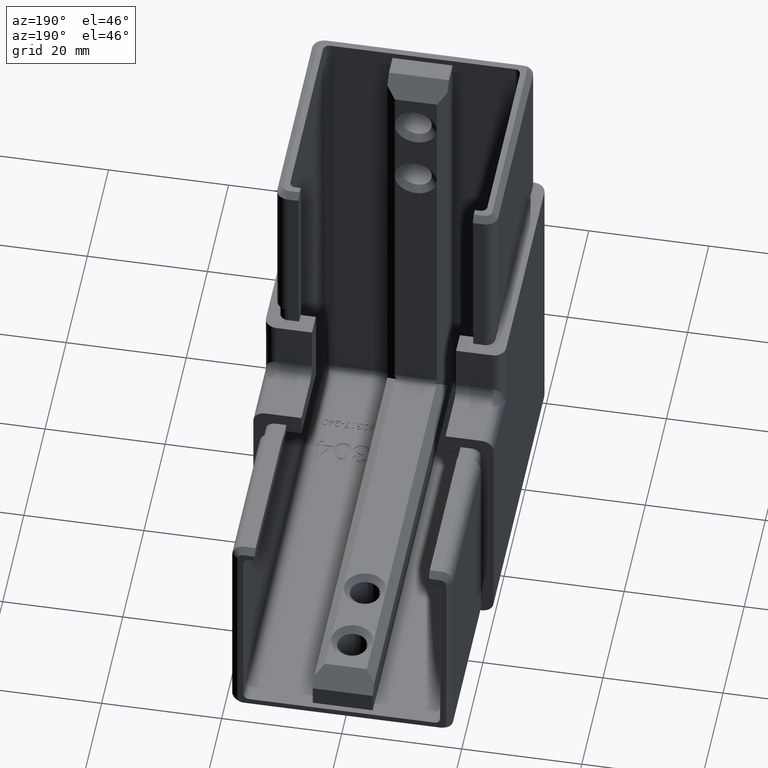
[diagram: clean part render]
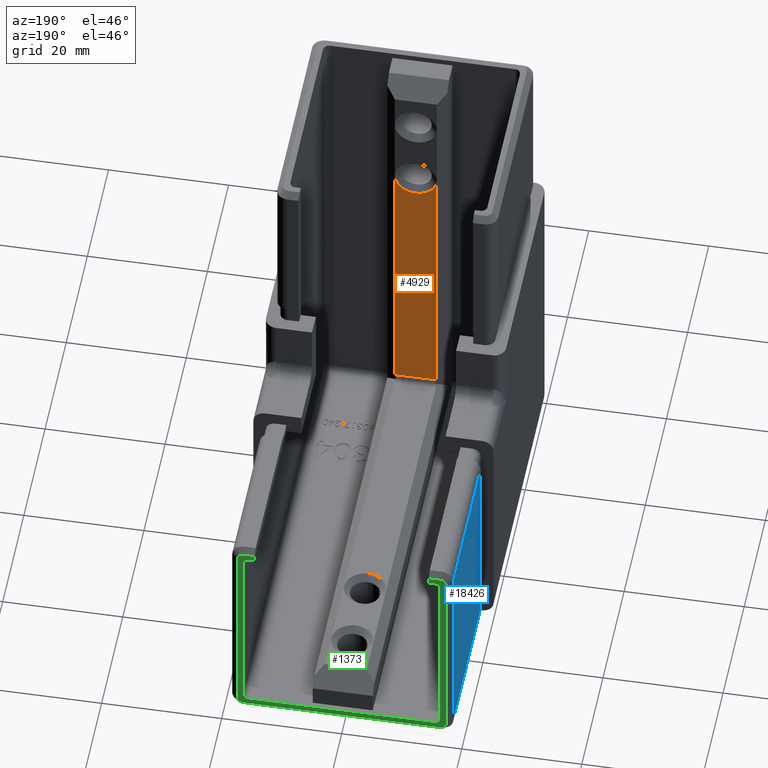
[diagram: same view with three faces highlighted in distinct colors, each labeled with its STEP entity id]
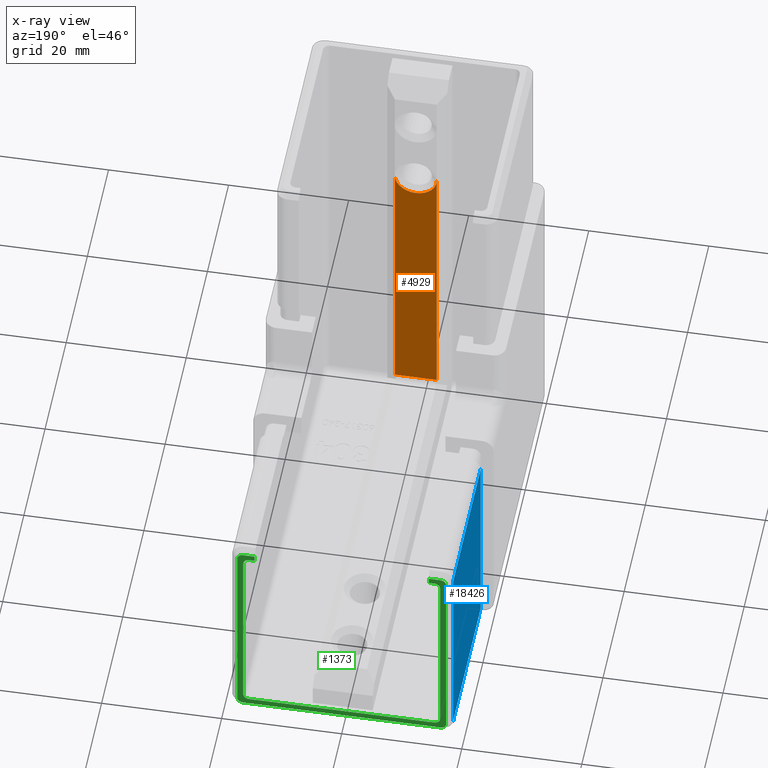
[diagram: x-ray of the same camera — body ghosted, the three highlighted faces saturated]
A machine part, auxiliary view with three faces highlighted in distinct colors.
The next image is the same camera in x-ray (body ghosted, the three faces saturated) — at least one of them is partly hidden behind the body in this view.
Their STEP definitions:

[orange] entity #4929 — the highlighted planar face has unit normal (-0, 1, 0).
#222 = AXIS2_PLACEMENT_3D ( 'NONE', #16158, #1973, #14361 ) ;
#526 = DIRECTION ( 'NONE',  ( 0.000000000000000000, -1.224646799147353207E-16, 1.000000000000000000 ) ) ;
#532 = LINE ( 'NONE', #15105, #19165 ) ;
#667 = CARTESIAN_POINT ( 'NONE',  ( -3.500000000000000444, 9.999999999999991118, 0.000000000000000000 ) ) ;
#1093 = VERTEX_POINT ( 'NONE', #14992 ) ;
#1263 = CIRCLE ( 'NONE', #222, 3.499999999999972911 ) ;
#1293 = ORIENTED_EDGE ( 'NONE', *, *, #20077, .T. ) ;
#1973 = DIRECTION ( 'NONE',  ( 4.956352788505162282E-16, -1.000000000000000000, -1.224646799147353207E-16 ) ) ;
#2079 = CARTESIAN_POINT ( 'NONE',  ( 3.500000000000000444, 9.999999999999987566, 58.00000000000000000 ) ) ;
#2110 = LINE ( 'NONE', #667, #12157 ) ;
#3156 = DIRECTION ( 'NONE',  ( 4.956352788505162282E-16, -1.000000000000000000, -1.224646799147353207E-16 ) ) ;
#3917 = CARTESIAN_POINT ( 'NONE',  ( 3.500000000000000444, 9.999999999999994671, 0.000000000000000000 ) ) ;
#4929 = ADVANCED_FACE ( 'NONE', ( #10218 ), #11789, .T. ) ;
#5102 = AXIS2_PLACEMENT_3D ( 'NONE', #17245, #3156, #14082 ) ;
#5641 = VECTOR ( 'NONE', #13127, 1000.000000000000000 ) ;
#7911 = EDGE_CURVE ( 'NONE', #18215, #1093, #532, .T. ) ;
#8099 = ORIENTED_EDGE ( 'NONE', *, *, #8465, .T. ) ;
#8465 = EDGE_CURVE ( 'NONE', #17392, #12765, #1263, .T. ) ;
#8512 = CARTESIAN_POINT ( 'NONE',  ( -3.500000000000000444, 9.999999999999991118, 0.000000000000000000 ) ) ;
#8837 = EDGE_CURVE ( 'NONE', #15285, #17392, #19876, .T. ) ;
#10218 = FACE_OUTER_BOUND ( 'NONE', #19209, .T. ) ;
#11718 = DIRECTION ( 'NONE',  ( -1.000000000000000000, -4.956352788505162282E-16, 0.000000000000000000 ) ) ;
#11789 = PLANE ( 'NONE',  #16563 ) ;
#12157 = VECTOR ( 'NONE', #526, 1000.000000000000000 ) ;
#12461 = CARTESIAN_POINT ( 'NONE',  ( -3.500000000000000444, 9.999999999999984013, 58.00000000000000000 ) ) ;
#12624 = ORIENTED_EDGE ( 'NONE', *, *, #7911, .T. ) ;
#12765 = VERTEX_POINT ( 'NONE', #2079 ) ;
#13127 = DIRECTION ( 'NONE',  ( 0.000000000000000000, -1.224646799147353207E-16, 1.000000000000000000 ) ) ;
#13333 = ORIENTED_EDGE ( 'NONE', *, *, #17070, .F. ) ;
#14082 = DIRECTION ( 'NONE',  ( -1.000000000000000000, -4.956352788505201725E-16, 0.000000000000000000 ) ) ;
#14224 = CARTESIAN_POINT ( 'NONE',  ( 3.500000000000000444, 9.999999999999992895, 10.99999999999999467 ) ) ;
#14361 = DIRECTION ( 'NONE',  ( -1.000000000000000000, -4.956352788505201725E-16, 0.000000000000000000 ) ) ;
#14419 = LINE ( 'NONE', #3917, #5641 ) ;
#14992 = CARTESIAN_POINT ( 'NONE',  ( -3.500000000000000444, 9.999999999999989342, 10.99999999999999112 ) ) ;
#15105 = CARTESIAN_POINT ( 'NONE',  ( -3.500000000000000888, 9.999999999999989342, 10.99999999999999112 ) ) ;
#15285 = VERTEX_POINT ( 'NONE', #12461 ) ;
#16158 = CARTESIAN_POINT ( 'NONE',  ( -2.750171364353452391E-16, 9.999999999999985789, 58.00000000000000000 ) ) ;
#16337 = CARTESIAN_POINT ( 'NONE',  ( 1.536092432662252896E-16, 9.999999999999985789, 54.50000000000002842 ) ) ;
#16446 = DIRECTION ( 'NONE',  ( -4.956352788505162282E-16, 1.000000000000000000, 1.224646799147353207E-16 ) ) ;
#16563 = AXIS2_PLACEMENT_3D ( 'NONE', #8512, #16446, #11718 ) ;
#17004 = ORIENTED_EDGE ( 'NONE', *, *, #8837, .T. ) ;
#17070 = EDGE_CURVE ( 'NONE', #18215, #12765, #14419, .T. ) ;
#17245 = CARTESIAN_POINT ( 'NONE',  ( -2.750171364353452391E-16, 9.999999999999985789, 58.00000000000000000 ) ) ;
#17392 = VERTEX_POINT ( 'NONE', #16337 ) ;
#18182 = DIRECTION ( 'NONE',  ( -1.000000000000000000, -4.956352788505161296E-16, -4.956352788505162282E-16 ) ) ;
#18215 = VERTEX_POINT ( 'NONE', #14224 ) ;
#19165 = VECTOR ( 'NONE', #18182, 1000.000000000000000 ) ;
#19209 = EDGE_LOOP ( 'NONE', ( #1293, #17004, #8099, #13333, #12624 ) ) ;
#19876 = CIRCLE ( 'NONE', #5102, 3.499999999999972911 ) ;
#20077 = EDGE_CURVE ( 'NONE', #1093, #15285, #2110, .T. ) ;

[blue] entity #18426 — the highlighted planar face has unit normal (-1, 0, 0).
#106 = VECTOR ( 'NONE', #17333, 1000.000000000000000 ) ;
#869 = PLANE ( 'NONE',  #6266 ) ;
#1368 = CARTESIAN_POINT ( 'NONE',  ( -18.39999999999999858, 80.00000000000000000, 3.599999999999961897 ) ) ;
#1772 = CARTESIAN_POINT ( 'NONE',  ( -18.40000000000000213, 80.00000000000001421, 36.39999999999995595 ) ) ;
#1921 = VERTEX_POINT ( 'NONE', #15728 ) ;
#3175 = CARTESIAN_POINT ( 'NONE',  ( -18.40000000000000213, 53.00000000000000711, 36.39999999999997016 ) ) ;
#3556 = LINE ( 'NONE', #1772, #106 ) ;
#4034 = CARTESIAN_POINT ( 'NONE',  ( -18.39999999999999858, 79.00000000000002842, 3.599999999999962341 ) ) ;
#4039 = ORIENTED_EDGE ( 'NONE', *, *, #16019, .T. ) ;
#4606 = FACE_OUTER_BOUND ( 'NONE', #7385, .T. ) ;
#4670 = DIRECTION ( 'NONE',  ( -0.000000000000000000, -1.000000000000000000, 4.440892098500625176E-16 ) ) ;
#5497 = DIRECTION ( 'NONE',  ( 0.000000000000000000, 0.000000000000000000, 1.000000000000000000 ) ) ;
#6266 = AXIS2_PLACEMENT_3D ( 'NONE', #7121, #19755, #5497 ) ;
#6310 = VERTEX_POINT ( 'NONE', #3175 ) ;
#6398 = EDGE_CURVE ( 'NONE', #15460, #6310, #3556, .T. ) ;
#6493 = CARTESIAN_POINT ( 'NONE',  ( -18.39999999999999858, 53.00000000000000000, 3.599999999999967670 ) ) ;
#6694 = DIRECTION ( 'NONE',  ( 0.000000000000000000, 2.220446049250312588E-16, 1.000000000000000000 ) ) ;
#6941 = ORIENTED_EDGE ( 'NONE', *, *, #10433, .T. ) ;
#7121 = CARTESIAN_POINT ( 'NONE',  ( -18.39999999999999858, 80.00000000000000000, 3.599999999999961897 ) ) ;
#7336 = VECTOR ( 'NONE', #4670, 1000.000000000000000 ) ;
#7385 = EDGE_LOOP ( 'NONE', ( #17110, #6941, #8119, #4039 ) ) ;
#7887 = VECTOR ( 'NONE', #6694, 1000.000000000000000 ) ;
#8119 = ORIENTED_EDGE ( 'NONE', *, *, #6398, .F. ) ;
#8127 = LINE ( 'NONE', #6493, #7887 ) ;
#9750 = CARTESIAN_POINT ( 'NONE',  ( -18.40000000000000213, 79.00000000000004263, 36.39999999999995595 ) ) ;
#10433 = EDGE_CURVE ( 'NONE', #1921, #6310, #8127, .T. ) ;
#10559 = VECTOR ( 'NONE', #11966, 1000.000000000000000 ) ;
#11966 = DIRECTION ( 'NONE',  ( 0.000000000000000000, -4.440892098500625176E-16, -1.000000000000000000 ) ) ;
#12100 = VERTEX_POINT ( 'NONE', #16658 ) ;
#15460 = VERTEX_POINT ( 'NONE', #9750 ) ;
#15728 = CARTESIAN_POINT ( 'NONE',  ( -18.39999999999999858, 53.00000000000000000, 3.599999999999977440 ) ) ;
#16019 = EDGE_CURVE ( 'NONE', #15460, #12100, #16916, .T. ) ;
#16658 = CARTESIAN_POINT ( 'NONE',  ( -18.39999999999999858, 79.00000000000002842, 3.599999999999962341 ) ) ;
#16916 = LINE ( 'NONE', #4034, #10559 ) ;
#17110 = ORIENTED_EDGE ( 'NONE', *, *, #17667, .T. ) ;
#17333 = DIRECTION ( 'NONE',  ( -0.000000000000000000, -1.000000000000000000, 4.440892098500625176E-16 ) ) ;
#17667 = EDGE_CURVE ( 'NONE', #12100, #1921, #19544, .T. ) ;
#18426 = ADVANCED_FACE ( 'NONE', ( #4606 ), #869, .T. ) ;
#19544 = LINE ( 'NONE', #1368, #7336 ) ;
#19755 = DIRECTION ( 'NONE',  ( -1.000000000000000000, 0.000000000000000000, 0.000000000000000000 ) ) ;

[green] entity #1373 — the highlighted planar face has unit normal (0, 1, -0).
#27 = DIRECTION ( 'NONE',  ( 0.000000000000000000, 1.000000000000000000, -4.440892098500625176E-16 ) ) ;
#234 = EDGE_CURVE ( 'NONE', #17022, #6151, #6107, .T. ) ;
#264 = CARTESIAN_POINT ( 'NONE',  ( 16.40000000000000568, 80.00000000000000000, 4.599999999999955236 ) ) ;
#291 = LINE ( 'NONE', #13755, #8148 ) ;
#548 = EDGE_CURVE ( 'NONE', #3428, #16782, #3662, .T. ) ;
#787 = ORIENTED_EDGE ( 'NONE', *, *, #1391, .F. ) ;
#859 = LINE ( 'NONE', #5792, #18718 ) ;
#1037 = CARTESIAN_POINT ( 'NONE',  ( 16.39999999999999147, 80.00000000000000000, 2.599999999999923705 ) ) ;
#1373 = ADVANCED_FACE ( 'NONE', ( #17084 ), #9236, .T. ) ;
#1391 = EDGE_CURVE ( 'NONE', #17186, #19114, #13654, .T. ) ;
#1600 = DIRECTION ( 'NONE',  ( 1.000000000000000000, 0.000000000000000000, 0.000000000000000000 ) ) ;
#1647 = AXIS2_PLACEMENT_3D ( 'NONE', #1673, #17297, #7929 ) ;
#1673 = CARTESIAN_POINT ( 'NONE',  ( -15.40000000000000036, 80.00000000000000000, 4.599999999999955236 ) ) ;
#1767 = DIRECTION ( 'NONE',  ( 1.000000000000000000, 0.000000000000000000, 0.000000000000000000 ) ) ;
#1820 = EDGE_CURVE ( 'NONE', #19901, #5185, #19750, .T. ) ;
#2023 = CARTESIAN_POINT ( 'NONE',  ( -15.40000000000000036, 80.00000000000001421, 36.39999999999997016 ) ) ;
#2131 = VECTOR ( 'NONE', #5957, 1000.000000000000000 ) ;
#2174 = AXIS2_PLACEMENT_3D ( 'NONE', #19254, #17622, #11671 ) ;
#2231 = VERTEX_POINT ( 'NONE', #3469 ) ;
#2451 = VERTEX_POINT ( 'NONE', #12851 ) ;
#2585 = ORIENTED_EDGE ( 'NONE', *, *, #9981, .F. ) ;
#2617 = DIRECTION ( 'NONE',  ( 1.000000000000000000, 0.000000000000000000, 0.000000000000000000 ) ) ;
#2776 = ORIENTED_EDGE ( 'NONE', *, *, #15008, .T. ) ;
#2928 = ORIENTED_EDGE ( 'NONE', *, *, #7196, .T. ) ;
#3129 = ORIENTED_EDGE ( 'NONE', *, *, #19818, .F. ) ;
#3205 = LINE ( 'NONE', #18652, #5168 ) ;
#3276 = VERTEX_POINT ( 'NONE', #12810 ) ;
#3428 = VERTEX_POINT ( 'NONE', #5780 ) ;
#3469 = CARTESIAN_POINT ( 'NONE',  ( -17.40000000000002700, 80.00000000000001421, 36.39999999999995595 ) ) ;
#3605 = LINE ( 'NONE', #4814, #18048 ) ;
#3662 = LINE ( 'NONE', #17556, #19787 ) ;
#3787 = CARTESIAN_POINT ( 'NONE',  ( 14.49999999999999822, 80.00000000000001421, 38.39999999999995595 ) ) ;
#3853 = DIRECTION ( 'NONE',  ( 8.673617379884058152E-16, -2.220446049250312588E-16, -1.000000000000000000 ) ) ;
#3922 = VERTEX_POINT ( 'NONE', #7128 ) ;
#4003 = LINE ( 'NONE', #3787, #6185 ) ;
#4029 = ORIENTED_EDGE ( 'NONE', *, *, #9770, .F. ) ;
#4183 = AXIS2_PLACEMENT_3D ( 'NONE', #11565, #16091, #5142 ) ;
#4203 = VERTEX_POINT ( 'NONE', #6631 ) ;
#4504 = ORIENTED_EDGE ( 'NONE', *, *, #18768, .F. ) ;
#4529 = DIRECTION ( 'NONE',  ( 1.000000000000000000, 0.000000000000000000, 0.000000000000000000 ) ) ;
#4748 = DIRECTION ( 'NONE',  ( -1.000000000000000000, -7.633258925925022926E-32, -1.718857102720922782E-16 ) ) ;
#4814 = CARTESIAN_POINT ( 'NONE',  ( 15.40000000000000036, 80.00000000000000000, 3.599999999999954348 ) ) ;
#4816 = AXIS2_PLACEMENT_3D ( 'NONE', #12634, #27, #1600 ) ;
#5142 = DIRECTION ( 'NONE',  ( 0.000000000000000000, 0.000000000000000000, 1.000000000000000000 ) ) ;
#5168 = VECTOR ( 'NONE', #10819, 1000.000000000000000 ) ;
#5185 = VERTEX_POINT ( 'NONE', #6299 ) ;
#5188 = DIRECTION ( 'NONE',  ( 1.000000000000000000, 0.000000000000000000, 0.000000000000000000 ) ) ;
#5312 = LINE ( 'NONE', #13564, #7508 ) ;
#5379 = DIRECTION ( 'NONE',  ( 2.115516434118058695E-16, -4.440892098500625176E-16, -1.000000000000000000 ) ) ;
#5546 = ORIENTED_EDGE ( 'NONE', *, *, #18347, .T. ) ;
#5562 = CARTESIAN_POINT ( 'NONE',  ( -16.40000000000000568, 80.00000000000000000, 4.599999999999955236 ) ) ;
#5780 = CARTESIAN_POINT ( 'NONE',  ( 14.49999999999999822, 80.00000000000001421, 37.39999999999997726 ) ) ;
#5786 = CARTESIAN_POINT ( 'NONE',  ( -16.40000000000000568, 80.00000000000001421, 36.39999999999995595 ) ) ;
#5792 = CARTESIAN_POINT ( 'NONE',  ( -16.40000000000000924, 80.00000000000000000, 4.599999999999955236 ) ) ;
#5957 = DIRECTION ( 'NONE',  ( 2.252887631138709814E-16, -2.220446049250312588E-16, -1.000000000000000000 ) ) ;
#6034 = CARTESIAN_POINT ( 'NONE',  ( 15.40000000000000036, 80.00000000000001421, 35.39999999999996305 ) ) ;
#6107 = CIRCLE ( 'NONE', #2174, 1.000000000000029532 ) ;
#6151 = VERTEX_POINT ( 'NONE', #1037 ) ;
#6185 = VECTOR ( 'NONE', #3853, 1000.000000000000000 ) ;
#6208 = EDGE_CURVE ( 'NONE', #8748, #17186, #859, .T. ) ;
#6277 = EDGE_LOOP ( 'NONE', ( #9599, #18238, #19510, #3129, #787, #15948, #4504, #14261, #10871, #14781, #11691, #4029, #2585, #19661, #5546, #2776, #6840, #9888, #13789, #2928 ) ) ;
#6299 = CARTESIAN_POINT ( 'NONE',  ( 15.40000000000000036, 80.00000000000000000, 3.599999999999952127 ) ) ;
#6483 = DIRECTION ( 'NONE',  ( 1.000000000000000000, 0.000000000000000000, 0.000000000000000000 ) ) ;
#6551 = CARTESIAN_POINT ( 'NONE',  ( -15.40000000000000036, 80.00000000000000000, 4.599999999999955236 ) ) ;
#6631 = CARTESIAN_POINT ( 'NONE',  ( -16.40000000000000568, 80.00000000000001421, 37.39999999999998437 ) ) ;
#6840 = ORIENTED_EDGE ( 'NONE', *, *, #234, .T. ) ;
#6918 = AXIS2_PLACEMENT_3D ( 'NONE', #5786, #15204, #13757 ) ;
#6961 = LINE ( 'NONE', #9474, #18234 ) ;
#7048 = DIRECTION ( 'NONE',  ( 1.000000000000000000, 0.000000000000000000, 0.000000000000000000 ) ) ;
#7128 = CARTESIAN_POINT ( 'NONE',  ( -15.40000000000000036, 80.00000000000000000, 3.599999999999950351 ) ) ;
#7196 = EDGE_CURVE ( 'NONE', #17566, #2231, #6961, .T. ) ;
#7508 = VECTOR ( 'NONE', #2617, 1000.000000000000000 ) ;
#7764 = CARTESIAN_POINT ( 'NONE',  ( -17.40000000000003055, 80.00000000000000000, 3.599999999999961897 ) ) ;
#7853 = CARTESIAN_POINT ( 'NONE',  ( 15.40000000000000036, 80.00000000000001421, 36.39999999999996305 ) ) ;
#7929 = DIRECTION ( 'NONE',  ( 1.000000000000000000, 0.000000000000000000, 0.000000000000000000 ) ) ;
#8026 = CARTESIAN_POINT ( 'NONE',  ( -16.40000000000000213, 80.00000000000000000, 3.599999999999947242 ) ) ;
#8148 = VECTOR ( 'NONE', #4529, 1000.000000000000000 ) ;
#8156 = DIRECTION ( 'NONE',  ( 0.000000000000000000, 0.000000000000000000, 1.000000000000000000 ) ) ;
#8420 = CARTESIAN_POINT ( 'NONE',  ( 16.39999999999999858, 80.00000000000001421, 35.39999999999996305 ) ) ;
#8652 = VECTOR ( 'NONE', #1767, 1000.000000000000000 ) ;
#8748 = VERTEX_POINT ( 'NONE', #5562 ) ;
#8769 = AXIS2_PLACEMENT_3D ( 'NONE', #8771, #16569, #7048 ) ;
#8771 = CARTESIAN_POINT ( 'NONE',  ( 15.40000000000000036, 80.00000000000000000, 4.599999999999955236 ) ) ;
#8865 = CARTESIAN_POINT ( 'NONE',  ( -14.50000000000000355, 80.00000000000001421, 36.39999999999997016 ) ) ;
#8925 = VERTEX_POINT ( 'NONE', #7853 ) ;
#9006 = LINE ( 'NONE', #11180, #16348 ) ;
#9138 = LINE ( 'NONE', #17594, #8652 ) ;
#9236 = PLANE ( 'NONE',  #1647 ) ;
#9238 = CARTESIAN_POINT ( 'NONE',  ( 16.39999999999999858, 80.00000000000001421, 35.39999999999996305 ) ) ;
#9474 = CARTESIAN_POINT ( 'NONE',  ( -17.40000000000002700, 80.00000000000000000, 4.599999999999955236 ) ) ;
#9568 = CARTESIAN_POINT ( 'NONE',  ( 17.40000000000003055, 80.00000000000001421, 36.39999999999995595 ) ) ;
#9599 = ORIENTED_EDGE ( 'NONE', *, *, #17824, .T. ) ;
#9718 = EDGE_CURVE ( 'NONE', #4203, #2451, #291, .T. ) ;
#9770 = EDGE_CURVE ( 'NONE', #3276, #8925, #9138, .T. ) ;
#9888 = ORIENTED_EDGE ( 'NONE', *, *, #19493, .T. ) ;
#9981 = EDGE_CURVE ( 'NONE', #3428, #3276, #4003, .T. ) ;
#10480 = CARTESIAN_POINT ( 'NONE',  ( -16.39999999999999858, 80.00000000000001421, 35.39999999999996305 ) ) ;
#10819 = DIRECTION ( 'NONE',  ( 8.673617379884087734E-16, 2.220446049250312588E-16, 1.000000000000000000 ) ) ;
#10871 = ORIENTED_EDGE ( 'NONE', *, *, #1820, .F. ) ;
#10923 = AXIS2_PLACEMENT_3D ( 'NONE', #8026, #12864, #8156 ) ;
#11180 = CARTESIAN_POINT ( 'NONE',  ( -15.40000000000000036, 80.00000000000000000, 2.599999999999918820 ) ) ;
#11217 = CARTESIAN_POINT ( 'NONE',  ( 16.40000000000000568, 80.00000000000001421, 37.39999999999997726 ) ) ;
#11309 = LINE ( 'NONE', #16532, #20095 ) ;
#11501 = CARTESIAN_POINT ( 'NONE',  ( 17.40000000000003055, 80.00000000000000000, 3.599999999999960565 ) ) ;
#11555 = VERTEX_POINT ( 'NONE', #9568 ) ;
#11565 = CARTESIAN_POINT ( 'NONE',  ( 16.40000000000000568, 80.00000000000001421, 36.39999999999995595 ) ) ;
#11671 = DIRECTION ( 'NONE',  ( 0.000000000000000000, 0.000000000000000000, 1.000000000000000000 ) ) ;
#11691 = ORIENTED_EDGE ( 'NONE', *, *, #14567, .F. ) ;
#11989 = CIRCLE ( 'NONE', #16830, 0.9999999999999974465 ) ;
#12509 = DIRECTION ( 'NONE',  ( 1.000000000000000000, 0.000000000000000000, 0.000000000000000000 ) ) ;
#12634 = CARTESIAN_POINT ( 'NONE',  ( -15.40000000000000036, 80.00000000000001421, 35.39999999999996305 ) ) ;
#12731 = DIRECTION ( 'NONE',  ( 0.000000000000000000, 4.440892098500625176E-16, 1.000000000000000000 ) ) ;
#12810 = CARTESIAN_POINT ( 'NONE',  ( 14.50000000000000000, 80.00000000000001421, 36.39999999999996305 ) ) ;
#12851 = CARTESIAN_POINT ( 'NONE',  ( -14.50000000000000178, 80.00000000000001421, 37.39999999999997726 ) ) ;
#12864 = DIRECTION ( 'NONE',  ( 0.000000000000000000, 1.000000000000000000, -4.440892098500625176E-16 ) ) ;
#12913 = CIRCLE ( 'NONE', #13324, 1.000000000000005995 ) ;
#13324 = AXIS2_PLACEMENT_3D ( 'NONE', #6551, #15860, #5188 ) ;
#13564 = CARTESIAN_POINT ( 'NONE',  ( -15.40000000000000036, 80.00000000000001421, 36.39999999999997016 ) ) ;
#13594 = VERTEX_POINT ( 'NONE', #8420 ) ;
#13654 = CIRCLE ( 'NONE', #4816, 0.9999999999999991118 ) ;
#13755 = CARTESIAN_POINT ( 'NONE',  ( -15.40000000000000036, 80.00000000000001421, 37.39999999999997726 ) ) ;
#13757 = DIRECTION ( 'NONE',  ( 0.000000000000000000, 0.000000000000000000, 1.000000000000000000 ) ) ;
#13789 = ORIENTED_EDGE ( 'NONE', *, *, #15444, .T. ) ;
#13913 = CIRCLE ( 'NONE', #4183, 1.000000000000021760 ) ;
#14058 = VERTEX_POINT ( 'NONE', #19852 ) ;
#14261 = ORIENTED_EDGE ( 'NONE', *, *, #19472, .F. ) ;
#14567 = EDGE_CURVE ( 'NONE', #8925, #13594, #11989, .T. ) ;
#14781 = ORIENTED_EDGE ( 'NONE', *, *, #18929, .F. ) ;
#15008 = EDGE_CURVE ( 'NONE', #11555, #17022, #11309, .T. ) ;
#15204 = DIRECTION ( 'NONE',  ( 0.000000000000000000, 1.000000000000000000, -4.440892098500625176E-16 ) ) ;
#15224 = VERTEX_POINT ( 'NONE', #8865 ) ;
#15444 = EDGE_CURVE ( 'NONE', #14058, #17566, #16449, .T. ) ;
#15773 = DIRECTION ( 'NONE',  ( -1.000000000000000000, 5.555567147270871390E-32, 2.502005013428087080E-16 ) ) ;
#15860 = DIRECTION ( 'NONE',  ( 0.000000000000000000, 1.000000000000000000, -4.440892098500625176E-16 ) ) ;
#15877 = EDGE_CURVE ( 'NONE', #15224, #2451, #3205, .T. ) ;
#15948 = ORIENTED_EDGE ( 'NONE', *, *, #6208, .F. ) ;
#16091 = DIRECTION ( 'NONE',  ( 0.000000000000000000, 1.000000000000000000, -4.440892098500625176E-16 ) ) ;
#16348 = VECTOR ( 'NONE', #4748, 1000.000000000000000 ) ;
#16449 = CIRCLE ( 'NONE', #10923, 1.000000000000028200 ) ;
#16532 = CARTESIAN_POINT ( 'NONE',  ( 17.40000000000003055, 80.00000000000000000, 4.599999999999961453 ) ) ;
#16569 = DIRECTION ( 'NONE',  ( 0.000000000000000000, 1.000000000000000000, -4.440892098500625176E-16 ) ) ;
#16610 = LINE ( 'NONE', #9238, #2131 ) ;
#16747 = DIRECTION ( 'NONE',  ( 3.379331446708064475E-16, 2.220446049250312588E-16, 1.000000000000000000 ) ) ;
#16782 = VERTEX_POINT ( 'NONE', #11217 ) ;
#16830 = AXIS2_PLACEMENT_3D ( 'NONE', #6034, #16987, #12509 ) ;
#16987 = DIRECTION ( 'NONE',  ( 0.000000000000000000, 1.000000000000000000, -4.440892098500625176E-16 ) ) ;
#17022 = VERTEX_POINT ( 'NONE', #11501 ) ;
#17084 = FACE_OUTER_BOUND ( 'NONE', #6277, .T. ) ;
#17186 = VERTEX_POINT ( 'NONE', #10480 ) ;
#17297 = DIRECTION ( 'NONE',  ( 0.000000000000000000, 1.000000000000000000, -4.440892098500625176E-16 ) ) ;
#17556 = CARTESIAN_POINT ( 'NONE',  ( -15.40000000000000036, 80.00000000000001421, 37.39999999999997726 ) ) ;
#17566 = VERTEX_POINT ( 'NONE', #7764 ) ;
#17594 = CARTESIAN_POINT ( 'NONE',  ( 14.50000000000000000, 80.00000000000001421, 36.39999999999996305 ) ) ;
#17622 = DIRECTION ( 'NONE',  ( 0.000000000000000000, 1.000000000000000000, -4.440892098500625176E-16 ) ) ;
#17824 = EDGE_CURVE ( 'NONE', #2231, #4203, #17854, .T. ) ;
#17854 = CIRCLE ( 'NONE', #6918, 1.000000000000028644 ) ;
#18048 = VECTOR ( 'NONE', #15773, 1000.000000000000000 ) ;
#18234 = VECTOR ( 'NONE', #12731, 1000.000000000000000 ) ;
#18238 = ORIENTED_EDGE ( 'NONE', *, *, #9718, .T. ) ;
#18347 = EDGE_CURVE ( 'NONE', #16782, #11555, #13913, .T. ) ;
#18652 = CARTESIAN_POINT ( 'NONE',  ( -14.50000000000000178, 80.00000000000001421, 38.39999999999995595 ) ) ;
#18718 = VECTOR ( 'NONE', #16747, 1000.000000000000000 ) ;
#18768 = EDGE_CURVE ( 'NONE', #3922, #8748, #12913, .T. ) ;
#18929 = EDGE_CURVE ( 'NONE', #13594, #19901, #16610, .T. ) ;
#19114 = VERTEX_POINT ( 'NONE', #2023 ) ;
#19254 = CARTESIAN_POINT ( 'NONE',  ( 16.40000000000000568, 80.00000000000000000, 3.599999999999953015 ) ) ;
#19472 = EDGE_CURVE ( 'NONE', #5185, #3922, #3605, .T. ) ;
#19493 = EDGE_CURVE ( 'NONE', #6151, #14058, #9006, .T. ) ;
#19510 = ORIENTED_EDGE ( 'NONE', *, *, #15877, .F. ) ;
#19661 = ORIENTED_EDGE ( 'NONE', *, *, #548, .T. ) ;
#19750 = CIRCLE ( 'NONE', #8769, 1.000000000000000888 ) ;
#19787 = VECTOR ( 'NONE', #6483, 1000.000000000000000 ) ;
#19818 = EDGE_CURVE ( 'NONE', #19114, #15224, #5312, .T. ) ;
#19852 = CARTESIAN_POINT ( 'NONE',  ( -16.39999999999999147, 80.00000000000000000, 2.599999999999918820 ) ) ;
#19901 = VERTEX_POINT ( 'NONE', #264 ) ;
#20095 = VECTOR ( 'NONE', #5379, 1000.000000000000000 ) ;